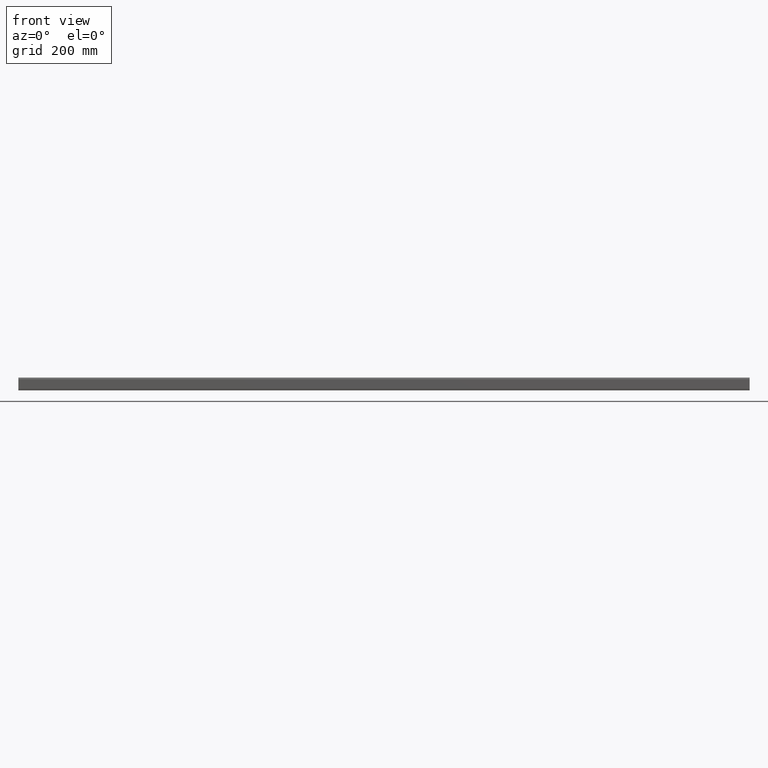
[diagram: clean part render]
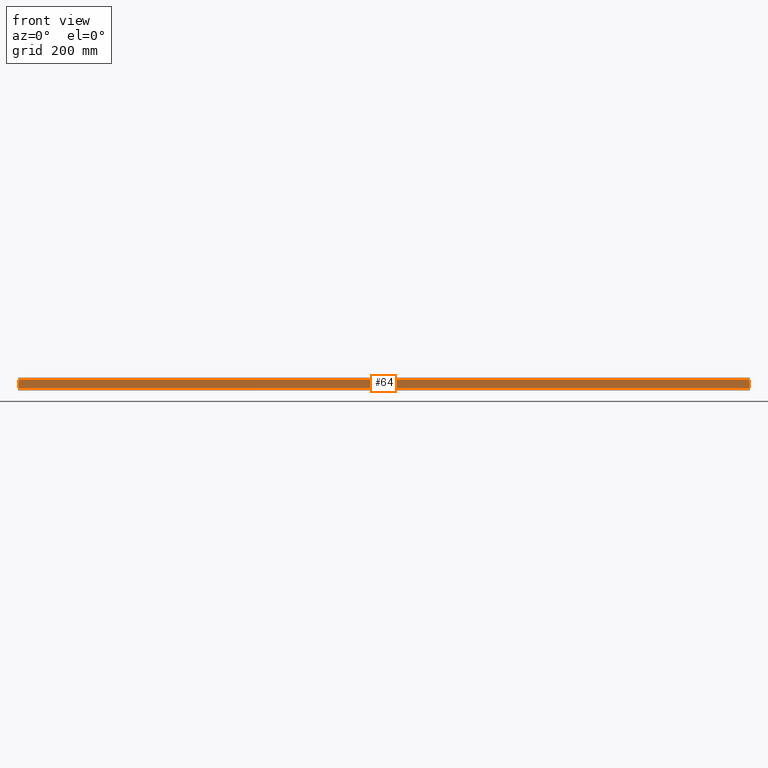
[diagram: same view with one face highlighted and labeled with its STEP entity id]
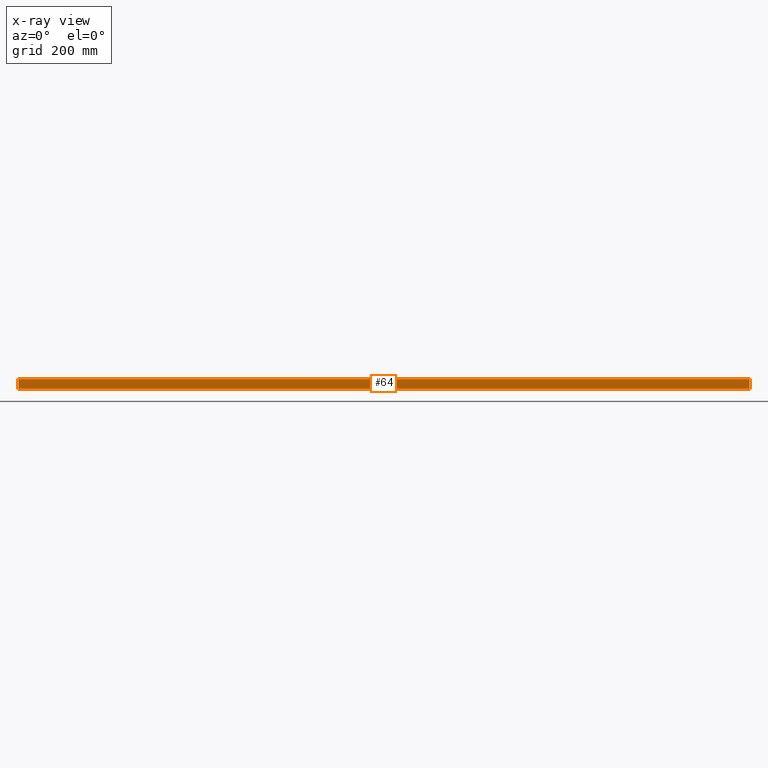
[diagram: x-ray of the same camera — body ghosted, the highlighted face saturated]
A machine part, front view. The second image highlights one B-rep face of the part: STEP entity #64.
The next image is the same camera in x-ray: the body ghosted, the highlighted face saturated — about 0% of this face is hidden behind the body in this view.
In plain terms, the highlighted planar face has unit normal (-0, 1, 0).
Its self-contained STEP definition (entity closure, byte-faithful):
#6 = EDGE_CURVE ( 'NONE', #134, #138, #294, .T. ) ;
#16 = EDGE_CURVE ( 'NONE', #165, #134, #308, .T. ) ;
#21 = EDGE_CURVE ( 'NONE', #111, #138, #338, .T. ) ;
#29 = EDGE_CURVE ( 'NONE', #165, #111, #393, .T. ) ;
#64 = ADVANCED_FACE ( 'NONE', ( #463 ), #458, .F. ) ;
#106 = EDGE_LOOP ( 'NONE', ( #143, #179, #204, #187 ) ) ;
#111 = VERTEX_POINT ( 'NONE', #549 ) ;
#134 = VERTEX_POINT ( 'NONE', #585 ) ;
#138 = VERTEX_POINT ( 'NONE', #541 ) ;
#143 = ORIENTED_EDGE ( 'NONE', *, *, #21, .T. ) ;
#165 = VERTEX_POINT ( 'NONE', #620 ) ;
#179 = ORIENTED_EDGE ( 'NONE', *, *, #6, .F. ) ;
#187 = ORIENTED_EDGE ( 'NONE', *, *, #29, .T. ) ;
#204 = ORIENTED_EDGE ( 'NONE', *, *, #16, .F. ) ;
#294 = LINE ( 'NONE', #295, #674 ) ;
#295 = CARTESIAN_POINT ( 'NONE',  ( 2000.000000000000000, -5.551115123125782700E-014, 1.836970198720929400E-016 ) ) ;
#298 = DIRECTION ( 'NONE',  ( -1.000000000000000000, -0.0000000000000000000, -0.0000000000000000000 ) ) ;
#308 = LINE ( 'NONE', #315, #730 ) ;
#315 = CARTESIAN_POINT ( 'NONE',  ( 2000.000000000000000, -1.110223024625156500E-013, 26.29999999999999000 ) ) ;
#316 = CARTESIAN_POINT ( 'NONE',  ( 0.0000000000000000000, -1.110223024625156500E-013, 26.29999999999999000 ) ) ;
#317 = DIRECTION ( 'NONE',  ( 0.0000000000000000000, 0.0000000000000000000, -1.000000000000000000 ) ) ;
#318 = DIRECTION ( 'NONE',  ( 0.0000000000000000000, 0.0000000000000000000, -1.000000000000000000 ) ) ;
#338 = LINE ( 'NONE', #316, #708 ) ;
#366 = DIRECTION ( 'NONE',  ( -1.000000000000000000, -0.0000000000000000000, -0.0000000000000000000 ) ) ;
#383 = CARTESIAN_POINT ( 'NONE',  ( 2000.000000000000000, -1.110223024625156500E-013, 26.29999999999999000 ) ) ;
#393 = LINE ( 'NONE', #383, #718 ) ;
#447 = CARTESIAN_POINT ( 'NONE',  ( 2000.000000000000000, -1.110223024625156500E-013, 26.29999999999999000 ) ) ;
#451 = DIRECTION ( 'NONE',  ( 0.0000000000000000000, -0.0000000000000000000, 1.000000000000000000 ) ) ;
#458 = PLANE ( 'NONE',  #743 ) ;
#461 = DIRECTION ( 'NONE',  ( -0.0000000000000000000, 1.000000000000000000, 0.0000000000000000000 ) ) ;
#463 = FACE_OUTER_BOUND ( 'NONE', #106, .T. ) ;
#541 = CARTESIAN_POINT ( 'NONE',  ( 0.0000000000000000000, -5.551115123125782700E-014, 1.836970198720929400E-016 ) ) ;
#549 = CARTESIAN_POINT ( 'NONE',  ( 0.0000000000000000000, -1.110223024625156500E-013, 26.29999999999999000 ) ) ;
#585 = CARTESIAN_POINT ( 'NONE',  ( 2000.000000000000000, -5.551115123125782700E-014, 1.836970198720929400E-016 ) ) ;
#620 = CARTESIAN_POINT ( 'NONE',  ( 2000.000000000000000, -1.110223024625156500E-013, 26.29999999999999000 ) ) ;
#674 = VECTOR ( 'NONE', #298, 1000.000000000000000 ) ;
#708 = VECTOR ( 'NONE', #318, 1000.000000000000000 ) ;
#718 = VECTOR ( 'NONE', #366, 1000.000000000000000 ) ;
#730 = VECTOR ( 'NONE', #317, 1000.000000000000000 ) ;
#743 = AXIS2_PLACEMENT_3D ( 'NONE', #447, #461, #451 ) ;